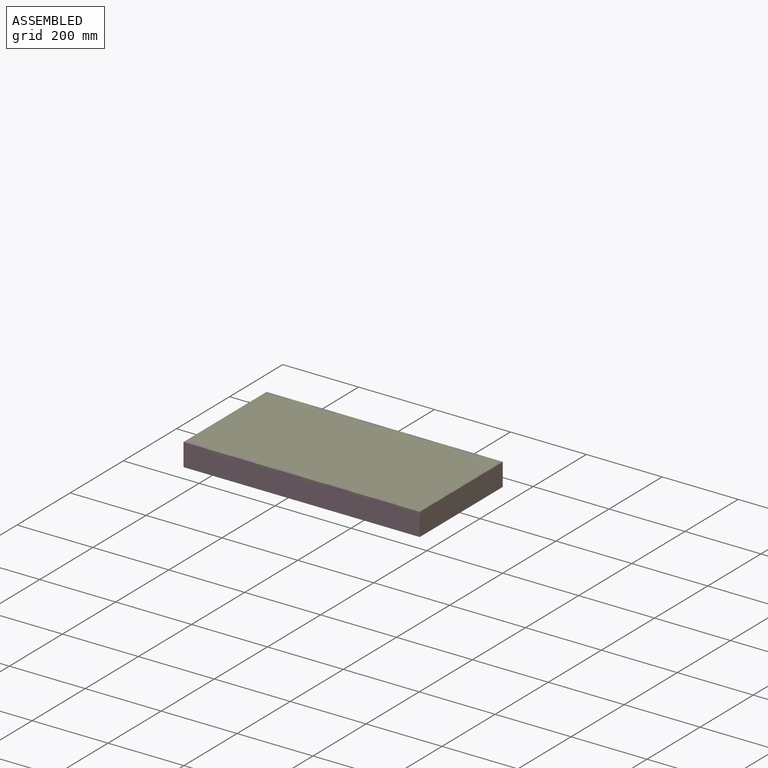
[diagram: assembled view]
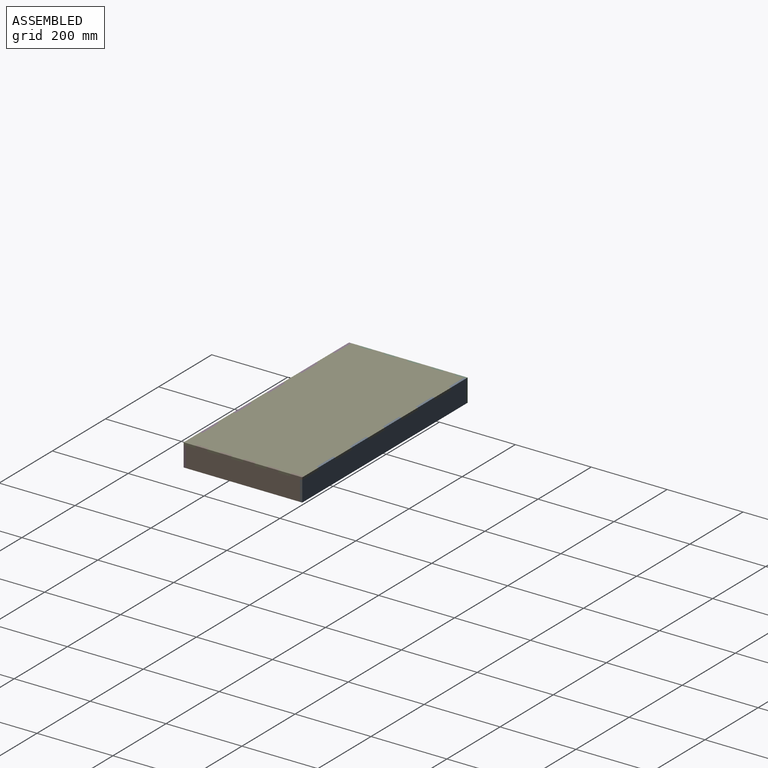
[diagram: assembled view, second angle]
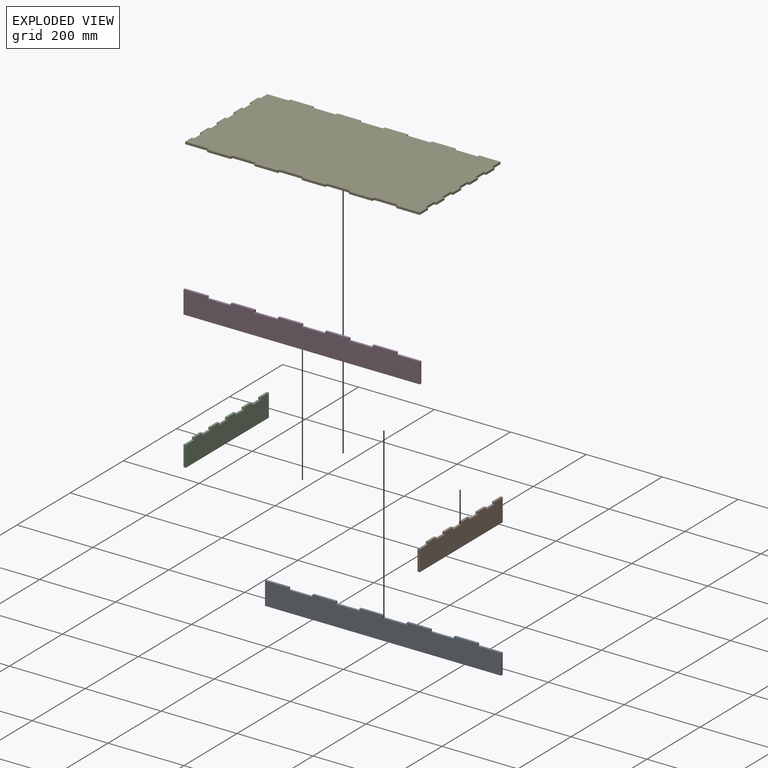
[diagram: exploded view]
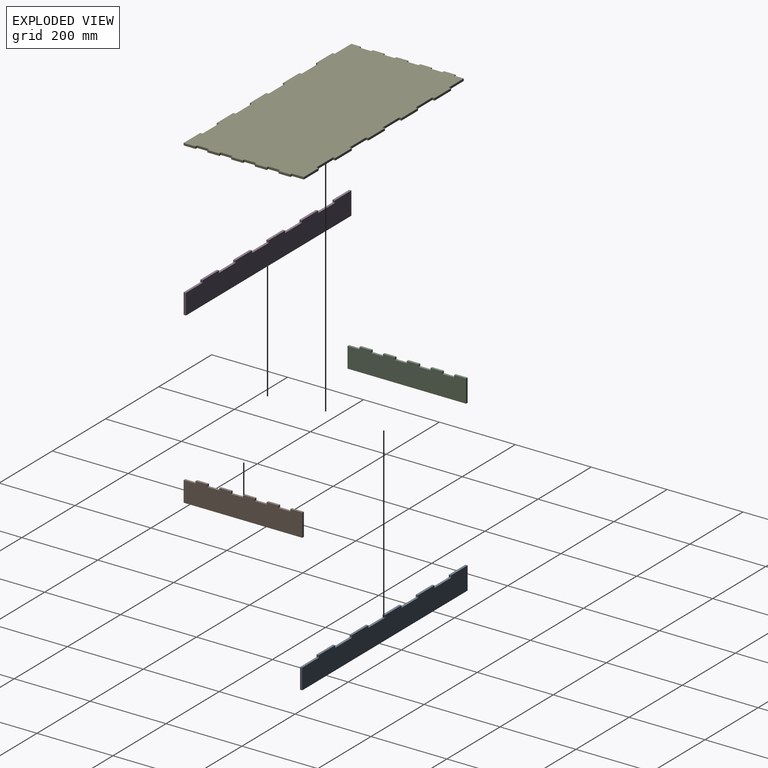
[diagram: exploded view, second angle]
ASSEMBLY  parts=5 mates=12
PART A: 24 faces, bbox 622.4x6x60 mm
  f0: plane 62.24x6mm, normal (0,0,1), area 373.4mm2, adj f5,f9,f19,f23
  f1: plane 62.24x6mm, normal (0,0,1), area 373.4mm2, adj f5,f9,f16,f21
  f2: plane 62.24x6mm, normal (0,0,1), area 373.4mm2, adj f5,f9,f13,f18
  f3: plane 62.24x6mm, normal (0,0,1), area 373.4mm2, adj f5,f9,f10,f15
  f4: plane 54x6mm, normal (-1,0,0), area 324mm2, adj f5,f8,f9,f22
  f5: plane 622.4x60mm, normal (0,1,0), area 35476.8mm2, adj f0,f1,f2,f3,f4,f6,f7,f8
  f6: plane 60x6mm, normal (1,0,0), area 360mm2, adj f5,f7,f8,f9
  f7: plane 62.24x6mm, normal (0,0,1), area 373.4mm2, adj f5,f6,f9,f12
  f8: plane 622.4x6mm, normal (0,0,-1), area 3734.4mm2, adj f4,f5,f6,f9
  f9: plane 622.4x60mm, normal (0,-1,0), area 35476.8mm2, adj f0,f1,f2,f3,f4,f6,f7,f8
  f10: plane 6x6mm, normal (1,0,0), area 36mm2, adj f3,f5,f9,f11
  f11: plane 62.24x6mm, normal (0,0,1), area 373.4mm2, adj f5,f9,f10,f12
  f12: plane 6x6mm, normal (-1,0,0), area 36mm2, adj f5,f7,f9,f11
  f13: plane 6x6mm, normal (1,0,0), area 36mm2, adj f2,f5,f9,f14
  f14: plane 62.24x6mm, normal (0,0,1), area 373.4mm2, adj f5,f9,f13,f15
  f15: plane 6x6mm, normal (-1,0,0), area 36mm2, adj f3,f5,f9,f14
  f16: plane 6x6mm, normal (1,0,0), area 36mm2, adj f1,f5,f9,f17
  f17: plane 62.24x6mm, normal (0,0,1), area 373.4mm2, adj f5,f9,f16,f18
  f18: plane 6x6mm, normal (-1,0,0), area 36mm2, adj f2,f5,f9,f17
  f19: plane 6x6mm, normal (1,0,0), area 36mm2, adj f0,f5,f9,f20
  f20: plane 62.24x6mm, normal (0,0,1), area 373.4mm2, adj f5,f9,f19,f21
  f21: plane 6x6mm, normal (-1,0,0), area 36mm2, adj f1,f5,f9,f20
  f22: plane 62.24x6mm, normal (0,0,1), area 373.4mm2, adj f4,f5,f9,f23
  f23: plane 6x6mm, normal (-1,0,0), area 36mm2, adj f0,f5,f9,f22
PART B: 24 faces, bbox 6x312.4x60 mm
  f0: plane 31.24x6mm, normal (0,0,1), area 187.4mm2, adj f8,f9,f19,f23
  f1: plane 31.24x6mm, normal (0,0,1), area 187.4mm2, adj f8,f9,f16,f21
  f2: plane 31.24x6mm, normal (0,0,1), area 187.4mm2, adj f8,f9,f13,f18
  f3: plane 31.24x6mm, normal (0,0,1), area 187.4mm2, adj f8,f9,f10,f15
  f4: plane 54x6mm, normal (0,-1,0), area 324mm2, adj f7,f8,f9,f22
  f5: plane 60x6mm, normal (0,1,0), area 360mm2, adj f6,f7,f8,f9
  f6: plane 31.24x6mm, normal (0,0,1), area 187.4mm2, adj f5,f8,f9,f12
  f7: plane 312.4x6mm, normal (0,0,-1), area 1874.4mm2, adj f4,f5,f8,f9
  f8: plane 312.4x60mm, normal (1,0,0), area 17806.8mm2, adj f0,f1,f2,f3,f4,f5,f6,f7
  f9: plane 312.4x60mm, normal (-1,0,0), area 17806.8mm2, adj f0,f1,f2,f3,f4,f5,f6,f7
  f10: plane 6x6mm, normal (0,1,0), area 36mm2, adj f3,f8,f9,f11
  f11: plane 31.24x6mm, normal (0,0,1), area 187.4mm2, adj f8,f9,f10,f12
  f12: plane 6x6mm, normal (0,-1,0), area 36mm2, adj f6,f8,f9,f11
  f13: plane 6x6mm, normal (0,1,0), area 36mm2, adj f2,f8,f9,f14
  f14: plane 31.24x6mm, normal (0,0,1), area 187.4mm2, adj f8,f9,f13,f15
  f15: plane 6x6mm, normal (0,-1,0), area 36mm2, adj f3,f8,f9,f14
  f16: plane 6x6mm, normal (0,1,0), area 36mm2, adj f1,f8,f9,f17
  f17: plane 31.24x6mm, normal (0,0,1), area 187.4mm2, adj f8,f9,f16,f18
  f18: plane 6x6mm, normal (0,-1,0), area 36mm2, adj f2,f8,f9,f17
  f19: plane 6x6mm, normal (0,1,0), area 36mm2, adj f0,f8,f9,f20
  f20: plane 31.24x6mm, normal (0,0,1), area 187.4mm2, adj f8,f9,f19,f21
  f21: plane 6x6mm, normal (0,-1,0), area 36mm2, adj f1,f8,f9,f20
  f22: plane 31.24x6mm, normal (0,0,1), area 187.4mm2, adj f4,f8,f9,f23
  f23: plane 6x6mm, normal (0,-1,0), area 36mm2, adj f0,f8,f9,f22
PART C: same geometry as B
PART D: same geometry as A
PART E: 78 faces, bbox 622.4x312.4x6 mm
  f0: plane 62.24x6mm, normal (0,1,0), area 373.4mm2, adj f8,f9,f50,f75
  f1: plane 62.24x6mm, normal (0,1,0), area 373.4mm2, adj f8,f9,f71,f72
  f2: plane 62.24x6mm, normal (0,1,0), area 373.4mm2, adj f8,f9,f66,f69
  f3: plane 62.24x6mm, normal (0,1,0), area 373.4mm2, adj f8,f9,f67,f77
  f4: plane 62.24x6mm, normal (0,-1,0), area 373.4mm2, adj f8,f9,f61,f63
  f5: plane 62.24x6mm, normal (0,-1,0), area 373.4mm2, adj f8,f9,f58,f60
  f6: plane 62.24x6mm, normal (0,-1,0), area 373.4mm2, adj f8,f9,f55,f57
  f7: plane 62.24x6mm, normal (0,-1,0), area 373.4mm2, adj f8,f9,f53,f54
  f8: plane 622.4x312.4mm, normal (0,0,1), area 188865mm2, adj f0,f1,f2,f3,f4,f5,f6,f7
  f9: plane 622.4x312.4mm, normal (0,0,-1), area 188865mm2, adj f0,f1,f2,f3,f4,f5,f6,f7
  f10: plane 31.24x6mm, normal (1,0,0), area 187.4mm2, adj f8,f9,f34,f36
  f11: plane 31.24x6mm, normal (1,0,0), area 187.4mm2, adj f8,f9,f25,f33
  f12: plane 31.24x6mm, normal (1,0,0), area 187.4mm2, adj f8,f9,f27,f32
  f13: plane 31.24x6mm, normal (1,0,0), area 187.4mm2, adj f8,f9,f21,f29
  f14: plane 31.24x6mm, normal (1,0,0), area 187.4mm2, adj f8,f9,f24,f30
  f15: plane 56.24x6mm, normal (0,1,0), area 337.4mm2, adj f8,f9,f37,f74
  f16: plane 31.24x6mm, normal (-1,0,0), area 187.4mm2, adj f8,f9,f44,f48
  f17: plane 31.24x6mm, normal (-1,0,0), area 187.4mm2, adj f8,f9,f41,f45
  f18: plane 31.24x6mm, normal (-1,0,0), area 187.4mm2, adj f8,f9,f38,f42
  f19: plane 25.24x6mm, normal (-1,0,0), area 151.4mm2, adj f8,f9,f39,f52
  f20: plane 31.24x6mm, normal (-1,0,0), area 187.4mm2, adj f8,f9,f22,f47
  f21: plane 62.24x6mm, normal (0,-1,0), area 373.4mm2, adj f8,f9,f13,f64
  f22: plane 6x6mm, normal (0,1,0), area 36mm2, adj f8,f9,f20,f23
  f23: plane 25.24x6mm, normal (-1,0,0), area 151.4mm2, adj f8,f9,f22,f51
  f24: plane 6x6mm, normal (0,1,0), area 36mm2, adj f8,f9,f14,f26
  f25: plane 6x6mm, normal (0,-1,0), area 36mm2, adj f8,f9,f11,f26
  f26: plane 31.24x6mm, normal (1,0,0), area 187.4mm2, adj f8,f9,f24,f25
  f27: plane 6x6mm, normal (0,-1,0), area 36mm2, adj f8,f9,f12,f28
  f28: plane 31.24x6mm, normal (1,0,0), area 187.4mm2, adj f8,f9,f27,f29
  f29: plane 6x6mm, normal (0,1,0), area 36mm2, adj f8,f9,f13,f28
  f30: plane 6x6mm, normal (0,-1,0), area 36mm2, adj f8,f9,f14,f31
  f31: plane 31.24x6mm, normal (1,0,0), area 187.4mm2, adj f8,f9,f30,f32
  f32: plane 6x6mm, normal (0,1,0), area 36mm2, adj f8,f9,f12,f31
  f33: plane 6x6mm, normal (0,1,0), area 36mm2, adj f8,f9,f11,f35
  f34: plane 6x6mm, normal (0,-1,0), area 36mm2, adj f8,f9,f10,f35
  f35: plane 31.24x6mm, normal (1,0,0), area 187.4mm2, adj f8,f9,f33,f34
  f36: plane 6x6mm, normal (0,1,0), area 36mm2, adj f8,f9,f10,f37
  f37: plane 31.24x6mm, normal (1,0,0), area 187.4mm2, adj f8,f9,f15,f36
  f38: plane 6x6mm, normal (0,-1,0), area 36mm2, adj f8,f9,f18,f40
  f39: plane 6x6mm, normal (0,1,0), area 36mm2, adj f8,f9,f19,f40
  f40: plane 31.24x6mm, normal (-1,0,0), area 187.4mm2, adj f8,f9,f38,f39
  f41: plane 6x6mm, normal (0,-1,0), area 36mm2, adj f8,f9,f17,f43
  f42: plane 6x6mm, normal (0,1,0), area 36mm2, adj f8,f9,f18,f43
  f43: plane 31.24x6mm, normal (-1,0,0), area 187.4mm2, adj f8,f9,f41,f42
  f44: plane 6x6mm, normal (0,-1,0), area 36mm2, adj f8,f9,f16,f46
  f45: plane 6x6mm, normal (0,1,0), area 36mm2, adj f8,f9,f17,f46
  f46: plane 31.24x6mm, normal (-1,0,0), area 187.4mm2, adj f8,f9,f44,f45
  f47: plane 6x6mm, normal (0,-1,0), area 36mm2, adj f8,f9,f20,f49
  f48: plane 6x6mm, normal (0,1,0), area 36mm2, adj f8,f9,f16,f49
  f49: plane 31.24x6mm, normal (-1,0,0), area 187.4mm2, adj f8,f9,f47,f48
  f50: plane 6x6mm, normal (-1,0,0), area 36mm2, adj f0,f8,f9,f51
  f51: plane 56.24x6mm, normal (0,1,0), area 337.4mm2, adj f8,f9,f23,f50
  f52: plane 62.24x6mm, normal (0,-1,0), area 373.4mm2, adj f8,f9,f19,f53
  f53: plane 6x6mm, normal (-1,0,0), area 36mm2, adj f7,f8,f9,f52
  f54: plane 6x6mm, normal (1,0,0), area 36mm2, adj f7,f8,f9,f56
  f55: plane 6x6mm, normal (-1,0,0), area 36mm2, adj f6,f8,f9,f56
  f56: plane 62.24x6mm, normal (0,-1,0), area 373.4mm2, adj f8,f9,f54,f55
  f57: plane 6x6mm, normal (1,0,0), area 36mm2, adj f6,f8,f9,f59
  f58: plane 6x6mm, normal (-1,0,0), area 36mm2, adj f5,f8,f9,f59
  f59: plane 62.24x6mm, normal (0,-1,0), area 373.4mm2, adj f8,f9,f57,f58
  f60: plane 6x6mm, normal (1,0,0), area 36mm2, adj f5,f8,f9,f62
  f61: plane 6x6mm, normal (-1,0,0), area 36mm2, adj f4,f8,f9,f62
  f62: plane 62.24x6mm, normal (0,-1,0), area 373.4mm2, adj f8,f9,f60,f61
  f63: plane 6x6mm, normal (1,0,0), area 36mm2, adj f4,f8,f9,f65
  f64: plane 6x6mm, normal (-1,0,0), area 36mm2, adj f8,f9,f21,f65
  f65: plane 62.24x6mm, normal (0,-1,0), area 373.4mm2, adj f8,f9,f63,f64
  f66: plane 6x6mm, normal (-1,0,0), area 36mm2, adj f2,f8,f9,f68
  f67: plane 6x6mm, normal (1,0,0), area 36mm2, adj f3,f8,f9,f68
  f68: plane 62.24x6mm, normal (0,1,0), area 373.4mm2, adj f8,f9,f66,f67
  f69: plane 6x6mm, normal (1,0,0), area 36mm2, adj f2,f8,f9,f70
  f70: plane 62.24x6mm, normal (0,1,0), area 373.4mm2, adj f8,f9,f69,f71
  f71: plane 6x6mm, normal (-1,0,0), area 36mm2, adj f1,f8,f9,f70
  f72: plane 6x6mm, normal (1,0,0), area 36mm2, adj f1,f8,f9,f73
  f73: plane 62.24x6mm, normal (0,1,0), area 373.4mm2, adj f8,f9,f72,f74
  f74: plane 6x6mm, normal (-1,0,0), area 36mm2, adj f8,f9,f15,f73
  f75: plane 6x6mm, normal (1,0,0), area 36mm2, adj f0,f8,f9,f76
  f76: plane 62.24x6mm, normal (0,1,0), area 373.4mm2, adj f8,f9,f75,f77
  f77: plane 6x6mm, normal (-1,0,0), area 36mm2, adj f3,f8,f9,f76
PLACE A rot(axis=(0,0,-1),180deg) t=(-0.56,150.33,-30)mm
PLACE B t=(304.64,0.13,-30)mm
PLACE C t=(-311.76,0.13,-30)mm
PLACE D rot(axis=(0,0,-1),180deg) t=(-0.56,-156.07,-30)mm
PLACE E t=(-0.56,0.13,-6)mm
MATE planar D.f9 <-> E.f56  axis (0,1,0) through (-2.19,-150.07,-31.42)mm
MATE planar E.f8 <-> B.f0  axis (0,0,1) through (0,0,0)mm
MATE planar E.f39 <-> C.f23  axis (0,1,0) through (-308.76,-124.83,-3)mm
MATE planar C.f9 <-> E.f20  axis (-1,0,0) through (-311.76,0.95,-31.42)mm
MATE planar A.f0 <-> E.f8  axis (0,0,1) through (217.28,153.33,0)mm
MATE planar B.f23 <-> E.f29  axis (0,-1,0) through (307.64,-124.83,-3)mm
MATE planar E.f50 <-> A.f12  axis (-1,0,0) through (-249.52,153.33,-3)mm
MATE planar E.f8 <-> C.f1  axis (0,0,1) through (0,0,0)mm
MATE planar B.f8 <-> E.f13  axis (1,0,0) through (310.64,0.95,-31.42)mm
MATE planar A.f5 <-> E.f68  axis (0,-1,0) through (-2.19,150.33,-31.42)mm
MATE planar D.f6 <-> C.f9  axis (-1,0,0) through (-311.76,-153.07,-30)mm
MATE planar D.f2 <-> E.f8  axis (0,0,1) through (-31.68,-153.07,0)mm
